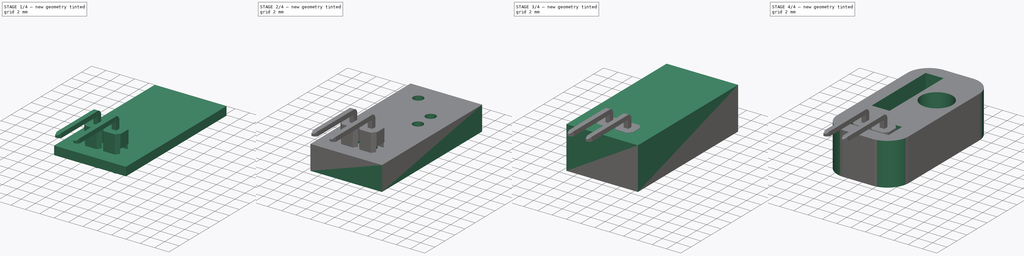
[diagram: build sequence overview — one tinted view per stage of 4, left to right]
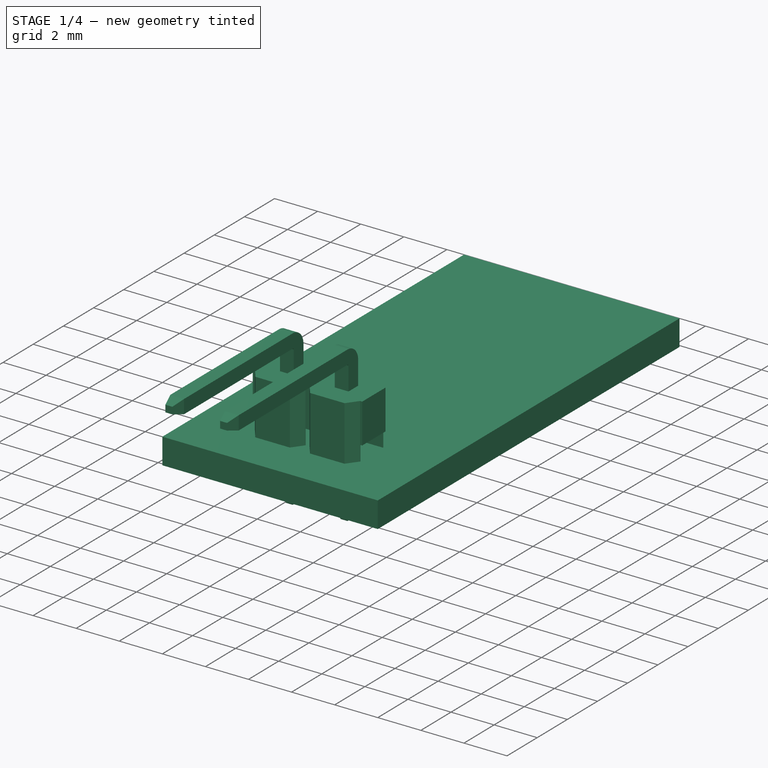
[diagram: stage 1 of 4 — iso view after this stage's code; geometry added in this stage tinted green]
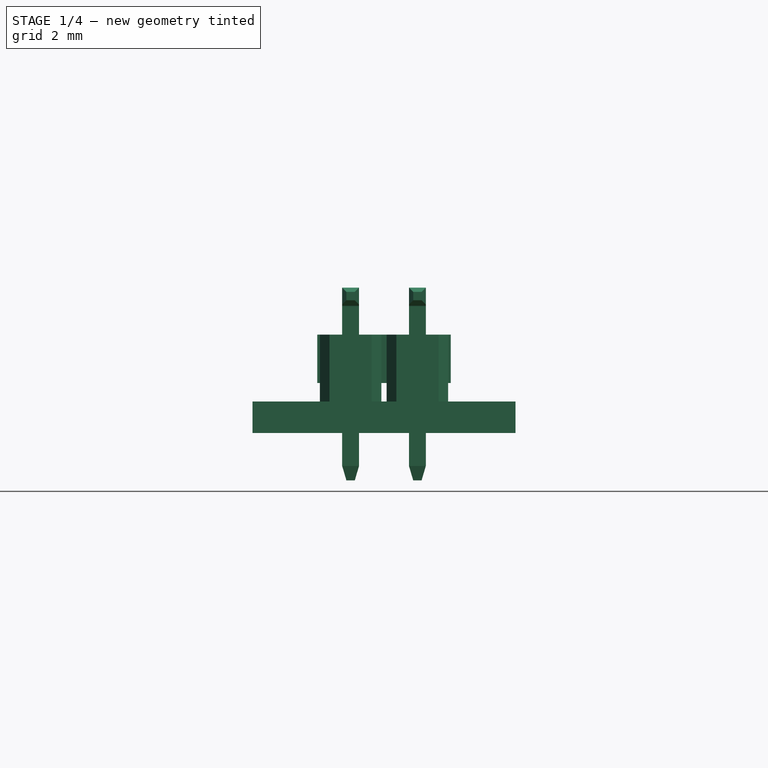
[diagram: stage 1 of 4 — front view after this stage's code; geometry added in this stage tinted green]
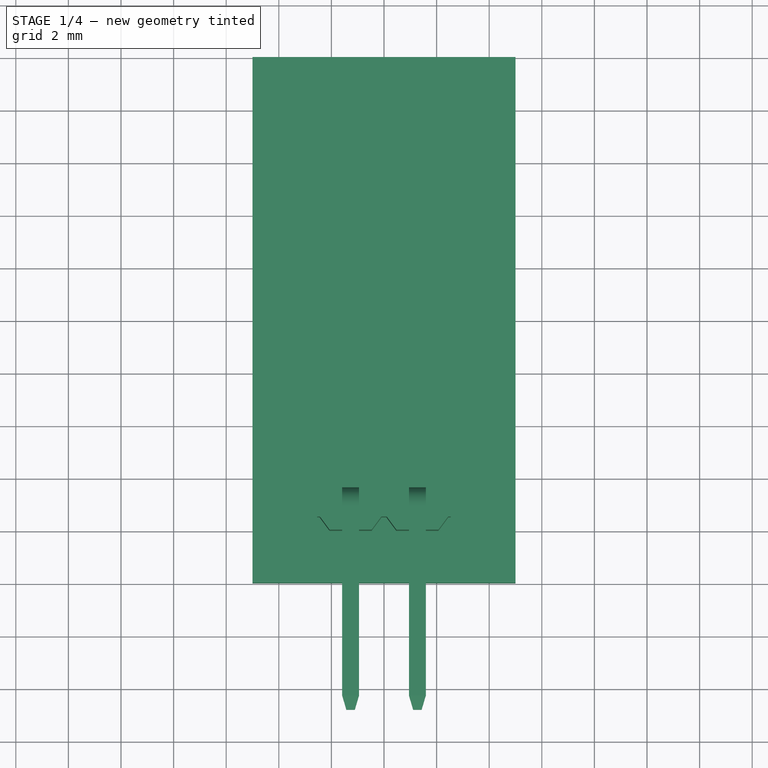
[diagram: stage 1 of 4 — top view after this stage's code; geometry added in this stage tinted green]
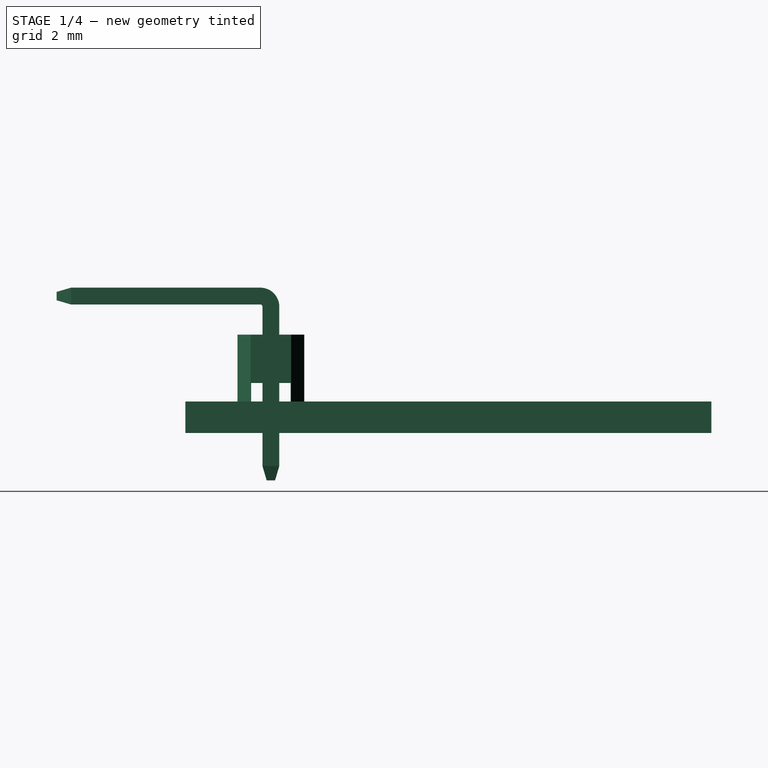
[diagram: stage 1 of 4 — right view after this stage's code; geometry added in this stage tinted green]
FCSTD DOCUMENT  (FreeCAD 0.16R6703 (Git))
Label: pcb-led
License: All rights reserved
LicenseURL: http://en.wikipedia.org/wiki/All_rights_reserved
objects: Part::Feature×9, Sketcher::SketchObject×7, App::DocumentObjectGroup×5, PartDesign::Pad×4, PartDesign::Pocket×3, Part::FeaturePython×3, Spreadsheet::Sheet×1, PartDesign::Fillet×1
note: 34 computed .brp shape members not serialized (recipe doc carries the construction recipe); baked Part::Feature solids carry a one-line shape summary decoded from their .brp

FEATURE [Sketcher::SketchObject] Sketch010  label="pcb-body-sketch"
  sketch-geometry (4):
    g0: LineSegment StartX=-5 StartY=10 StartZ=0 EndX=5 EndY=10 EndZ=0
    g1: LineSegment StartX=5 StartY=10 StartZ=0 EndX=5 EndY=-10 EndZ=0
    g2: LineSegment StartX=5 StartY=-10 StartZ=0 EndX=-5 EndY=-10 EndZ=0
    g3: LineSegment StartX=-5 StartY=-10 StartZ=0 EndX=-5 EndY=10 EndZ=0
  constraints (11):
    c: Coincident(g0,g1)
    c: Coincident(g1,g2)
    c: Coincident(g2,g3)
    c: Coincident(g3,g0)
    c: Horizontal(g0)
    c: Horizontal(g2)
    c: Vertical(g1)
    c: Vertical(g3)
    c: Symmetric(g0,g1,g-1)
    c: DistanceX(g0,g0) = 10
    c: DistanceY(g1,g1) = 20
FEATURE [Spreadsheet::Sheet] Spreadsheet  label="Board_parameters"
  cells = B2=PCB_th; C2(PCB_th)=1.2; D2=Thickness of the PCB layer; B3=Drill1_diam; C3(Drill1_diam)=1.4; D3=Drills type 1 diameter; B4=PCB_sp; C4(PCB_sp)=0.2; D4=Thickness of the PCB spacer layer; B5=PCB_ch_th_; C5(PCB_ch_th)=2; D5=Thickness of the Bottom channels; B6=PCB_top_th_; C6(PCB_top_th)=2.5; D6=Thickness of the TOP pcb
FEATURE [PartDesign::Pad] Pad004  label="PCB-layer-blank"
  Length = 1.2
  Length2 = 100
  Sketch = -> Sketch010
  Type = 0
  expr: Length = Board_parameters.PCB_th
FEATURE [Part::FeaturePython] Clone001  label="support-array"  # WARN: FeaturePython — macro-defined, semantics opaque (R4)
  Placement = pos=(1.27,-6.75,1.2) rot=(0,0,1;3.14159rad)
  Scale = (1,1,1)
FEATURE [Part::FeaturePython] Clone002  label="pin-array"  # WARN: FeaturePython — macro-defined, semantics opaque (R4)
  Placement = pos=(1.27,-4.21,-1.254) rot=(0,0,1;3.14159rad)
  Scale = (1,1,1)
FEATURE [App::DocumentObjectGroup] Group001  label="connector"
  Group = -> [Clone001,Clone002]
FEATURE [Part::Feature] Part__Feature  label="led_head"
  Placement = pos=(2.0249,2.79891,1.2) rot=(0.57735,0.57735,0.57735;2.0944rad)
  shape: bbox 3.686 x 3.686 x 6.1 mm, 5 faces (baked)
FEATURE [Part::Feature] Part__Feature001  label="led-neg-pin"
  Placement = pos=(2.0249,2.79891,1.2) rot=(0.57735,0.57735,0.57735;2.0944rad)
  shape: bbox 0.44 x 1.74 x 5.65 mm, 10 faces (baked)
FEATURE [Part::Feature] Part__Feature002  label="led-pos-pin"
  Placement = pos=(2.0249,2.79891,1.2) rot=(0.57735,0.57735,0.57735;2.0944rad)
  shape: bbox 0.44 x 1.1 x 7.7 mm, 11 faces (baked)
FEATURE [App::DocumentObjectGroup] Group002  label="led-3mm"
  Group = -> [Part__Feature,Part__Feature001,Part__Feature002]
FEATURE [Part::Feature] Part__Feature003  label="Clone_of_res-body"
  Placement = pos=(-1.95934,2.93901,2.22) rot=(0,0,1;1.5708rad)
  shape: bbox 2.3 x 6 x 2.3 mm, 5 faces (baked)
FEATURE [Part::Feature] Part__Feature004  label="Clone_of_ring-1"
  Placement = pos=(-1.95934,2.93901,2.22) rot=(0,0,1;1.5708rad)
  shape: bbox 2.231 x 0.3919 x 2.231 mm, 4 faces (baked)
FEATURE [Part::Feature] Part__Feature005  label="Clone_of_ring-2"
  Placement = pos=(-1.95934,2.93901,2.22) rot=(0,0,1;1.5708rad)
  shape: bbox 1.833 x 0.4 x 1.833 mm, 4 faces (baked)
FEATURE [Part::Feature] Part__Feature006  label="Clone_of_ring-4"
  Placement = pos=(-1.95934,2.93901,2.22) rot=(0,0,1;1.5708rad)
  shape: bbox 2.233 x 0.3939 x 2.233 mm, 4 faces (baked)
FEATURE [Part::Feature] Part__Feature007  label="Clone_of_Sweep"
  Placement = pos=(-1.95934,2.93901,2.22) rot=(0,0,1;1.5708rad)
  shape: bbox 0.5 x 10.64 x 4.404 mm, 7 faces (baked)
FEATURE [Part::Feature] Part__Feature008  label="Clone_of_ring-3"
  Placement = pos=(-1.95934,2.93901,2.22) rot=(0,0,1;1.5708rad)
  shape: bbox 1.833 x 0.4 x 1.833 mm, 4 faces (baked)
FEATURE [App::DocumentObjectGroup] Group003  label="Resistor"
  Group = -> [Part__Feature003,Part__Feature004,Part__Feature005,Part__Feature006,Part__Feature007,Part__Feature008]
FEATURE [App::DocumentObjectGroup] Group004  label="Components"
  Group = -> [Group001,Group002,Group003]
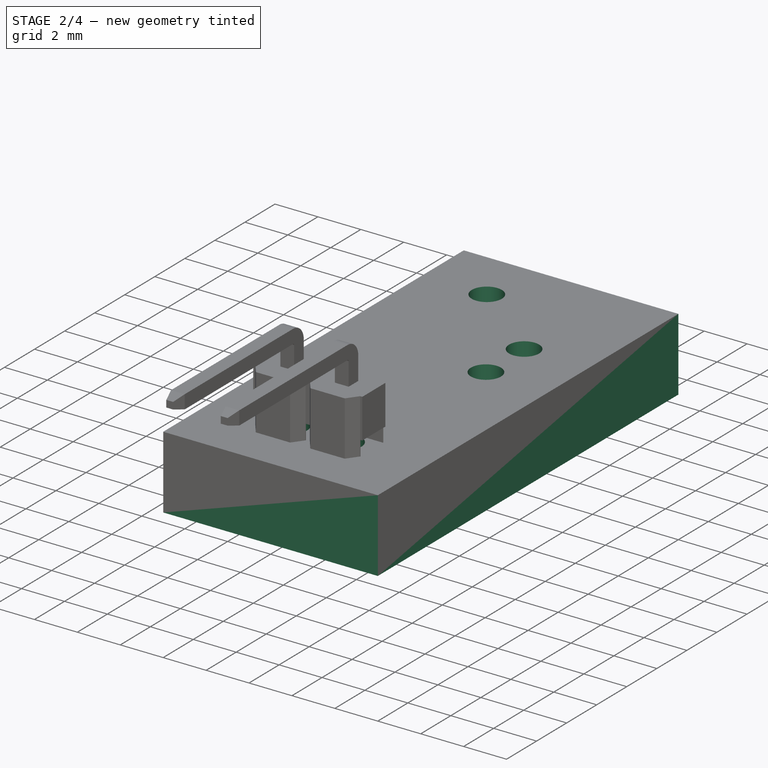
[diagram: stage 2 of 4 — iso view after this stage's code; geometry added in this stage tinted green]
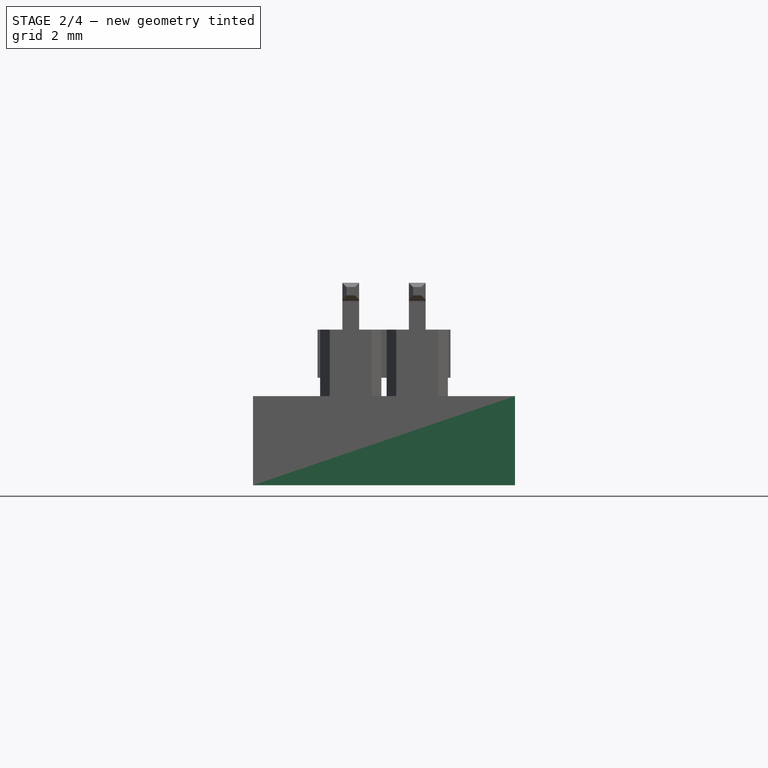
[diagram: stage 2 of 4 — front view after this stage's code; geometry added in this stage tinted green]
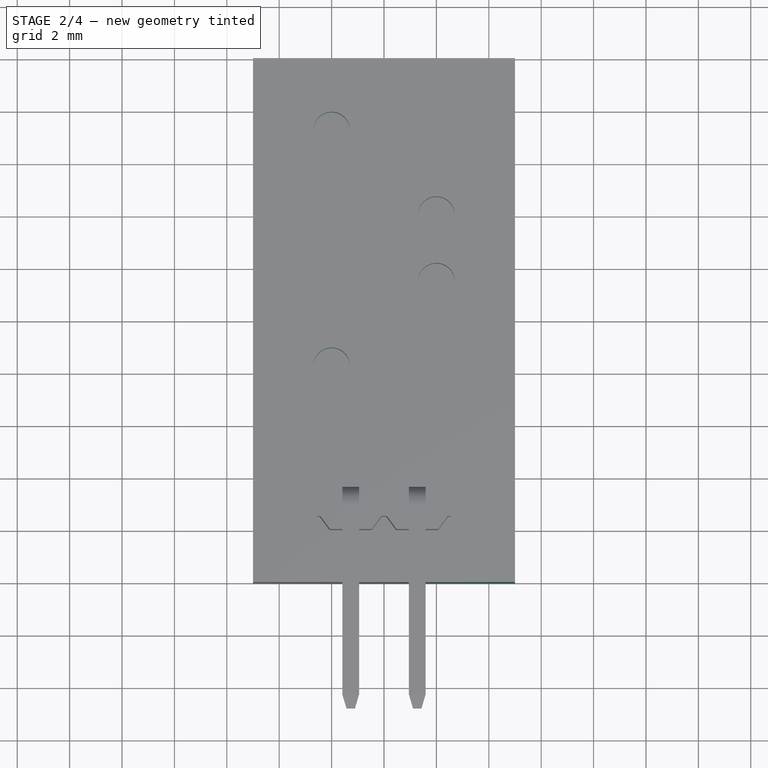
[diagram: stage 2 of 4 — top view after this stage's code; geometry added in this stage tinted green]
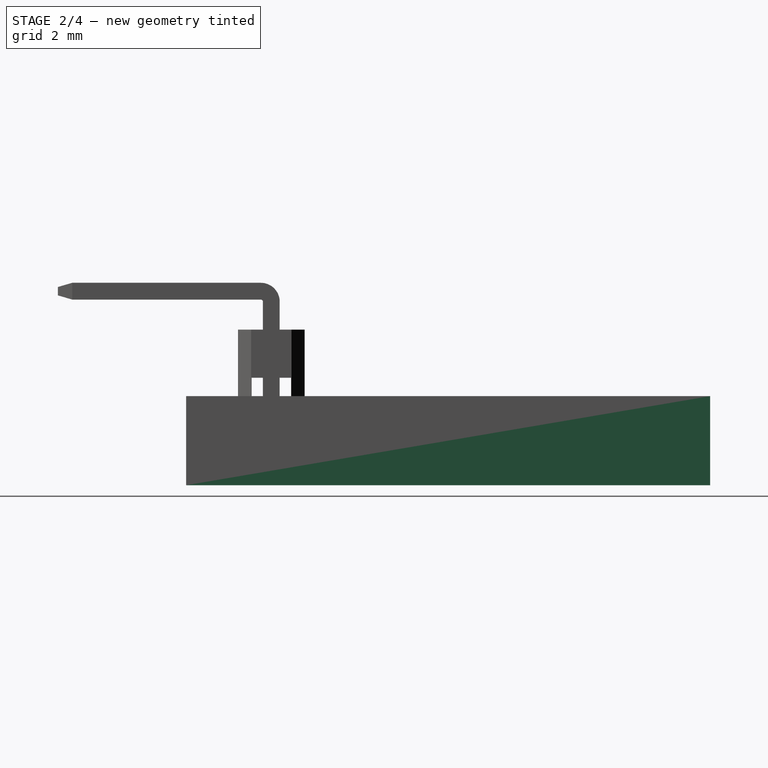
[diagram: stage 2 of 4 — right view after this stage's code; geometry added in this stage tinted green]
FEATURE [Sketcher::SketchObject] Sketch011  label="PCB-drills1-sketch"
  ExternalGeometry = -> [Pad004]
  Placement = pos=(0,0,1.2) rot=(0,0,1;0rad)
  Support = -> Pad004 [Face6]
  expr: Constraints[5] = Board_parameters.Drill1_diam / 2
  sketch-geometry (9):
    g0: Circle CenterX=-1.27 CenterY=-6.75 CenterZ=0 NormalX=0 NormalY=0 NormalZ=1 Radius=0.7
    g1: Circle CenterX=1.27 CenterY=-6.75 CenterZ=0 NormalX=0 NormalY=0 NormalZ=1 Radius=0.7
    g2: Circle CenterX=-2 CenterY=7.25 CenterZ=0 NormalX=0 NormalY=0 NormalZ=1 Radius=0.7
    g3: Circle CenterX=-2 CenterY=-1.75 CenterZ=0 NormalX=0 NormalY=0 NormalZ=1 Radius=0.7
    g4: Circle CenterX=2 CenterY=4.02 CenterZ=0 NormalX=0 NormalY=0 NormalZ=1 Radius=0.7
    g5: Circle CenterX=2 CenterY=1.48 CenterZ=0 NormalX=0 NormalY=0 NormalZ=1 Radius=0.7
    g6: LineSegment [constr] StartX=-2 StartY=7.25 StartZ=0 EndX=-2 EndY=-1.75 EndZ=0
    g7: LineSegment [constr] StartX=2 StartY=4.02 StartZ=0 EndX=2 EndY=1.48 EndZ=0
    g8: LineSegment [constr] StartX=-2 StartY=2.75 StartZ=0 EndX=2 EndY=2.75 EndZ=0
  constraints (25):
    c: Equal(g2,g4)
    c: Equal(g4,g3)
    c: Equal(g3,g5)
    c: Equal(g5,g0)
    c: Equal(g0,g1)
    c: Radius(g0) = 0.7
    c: Symmetric(g0,g1,g-2)
    c: DistanceX(g0,g1) = 2.54
    c: DistanceY(g-3,g0) = 3.25
    c: Coincident(g6,g2)
    c: Coincident(g6,g3)
    c: Vertical(g6)
    c: DistanceY(g6,g6) = 9
    c: Coincident(g7,g4)
    c: Coincident(g7,g5)
    c: Vertical(g7)
    c: DistanceY(g7,g7) = 2.54
    c: PointOnObject(g8,g6)
    c: PointOnObject(g8,g7)
    c: Horizontal(g8)
    c: Symmetric(g4,g5,g8)
    c: Symmetric(g2,g3,g8)
    c: DistanceX(g2,g4) = 4
    c: Symmetric(g8,g8,g-2)
    c: DistanceY(g0,g3) = 5
FEATURE [PartDesign::Pocket] Pocket004  label="PCB-drills1"
  Length = 5
  Sketch = -> Sketch011
  Type = 1
FEATURE [Sketcher::SketchObject] Sketch012  label="Spacer_layer-sketch"
  ExternalGeometry = -> [Pocket004]
  Placement = pos=(0,0,0) rot=(1,0,0;3.14159rad)
  Support = -> Pocket004 [Face4]
  sketch-geometry (4):
    g0: LineSegment StartX=-5 StartY=10 StartZ=0 EndX=5 EndY=10 EndZ=0
    g1: LineSegment StartX=5 StartY=10 StartZ=0 EndX=5 EndY=-10 EndZ=0
    g2: LineSegment StartX=5 StartY=-10 StartZ=0 EndX=-5 EndY=-10 EndZ=0
    g3: LineSegment StartX=-5 StartY=-10 StartZ=0 EndX=-5 EndY=10 EndZ=0
  constraints (10):
    c: Coincident(g0,g1)
    c: Coincident(g1,g2)
    c: Coincident(g2,g3)
    c: Coincident(g3,g0)
    c: Horizontal(g0)
    c: Horizontal(g2)
    c: Vertical(g1)
    c: Vertical(g3)
    c: Coincident(g0,g-3)
    c: Coincident(g1,g-4)
FEATURE [PartDesign::Pad] Pad005  label="spacer-layer"
  Length = 0.2
  Length2 = 100
  Sketch = -> Sketch012
  Type = 0
  expr: Length = Board_parameters.PCB_sp
FEATURE [Sketcher::SketchObject] Sketch014  label="Bottom_base_channel-sketch"
  ExternalGeometry = -> [Pad005]
  Placement = pos=(0,0,-0.2) rot=(1,0,0;3.14159rad)
  Support = -> Pad005 [Face15]
  sketch-geometry (4):
    g0: LineSegment StartX=-5 StartY=10 StartZ=0 EndX=5 EndY=10 EndZ=0
    g1: LineSegment StartX=5 StartY=10 StartZ=0 EndX=5 EndY=-10 EndZ=0
    g2: LineSegment StartX=5 StartY=-10 StartZ=0 EndX=-5 EndY=-10 EndZ=0
    g3: LineSegment StartX=-5 StartY=-10 StartZ=0 EndX=-5 EndY=10 EndZ=0
  constraints (10):
    c: Coincident(g0,g1)
    c: Coincident(g1,g2)
    c: Coincident(g2,g3)
    c: Coincident(g3,g0)
    c: Horizontal(g0)
    c: Horizontal(g2)
    c: Vertical(g1)
    c: Vertical(g3)
    c: Coincident(g0,g-3)
    c: Coincident(g1,g-4)
FEATURE [PartDesign::Pad] Pad006  label="Base_bottom_channel_layer"
  Length = 2
  Length2 = 100
  Sketch = -> Sketch014
  Type = 0
  expr: Length = Board_parameters.PCB_ch_th
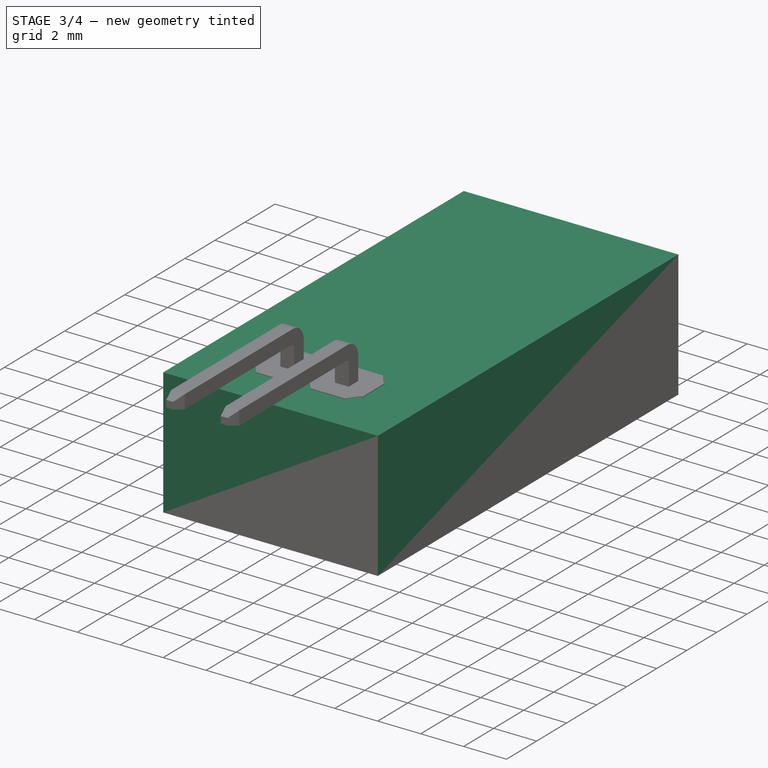
[diagram: stage 3 of 4 — iso view after this stage's code; geometry added in this stage tinted green]
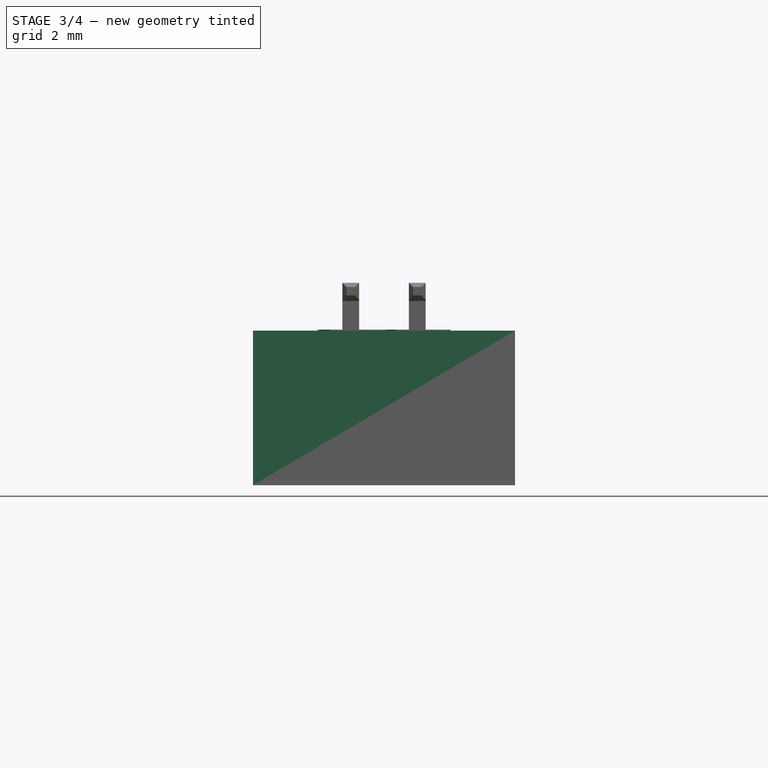
[diagram: stage 3 of 4 — front view after this stage's code; geometry added in this stage tinted green]
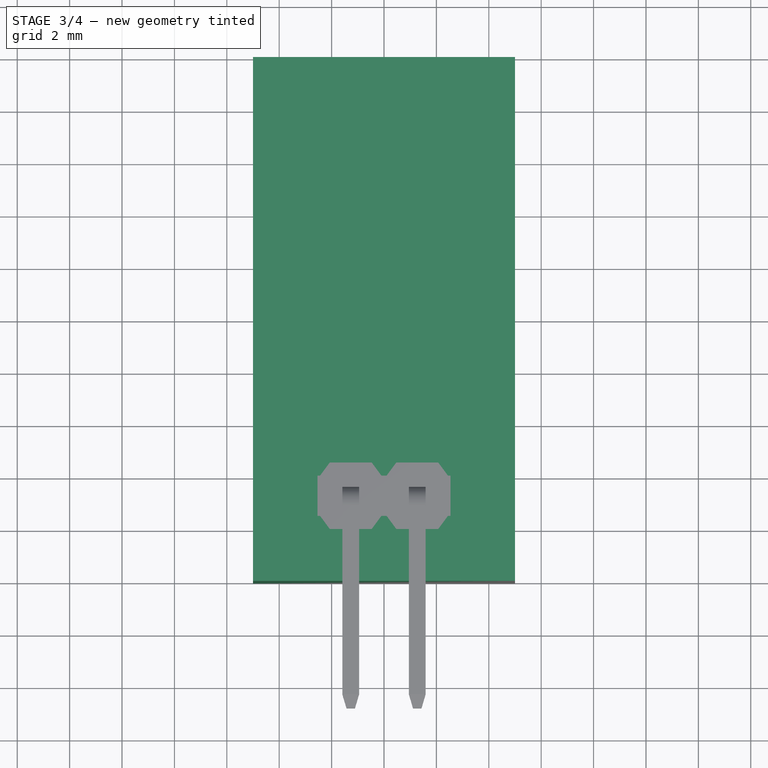
[diagram: stage 3 of 4 — top view after this stage's code; geometry added in this stage tinted green]
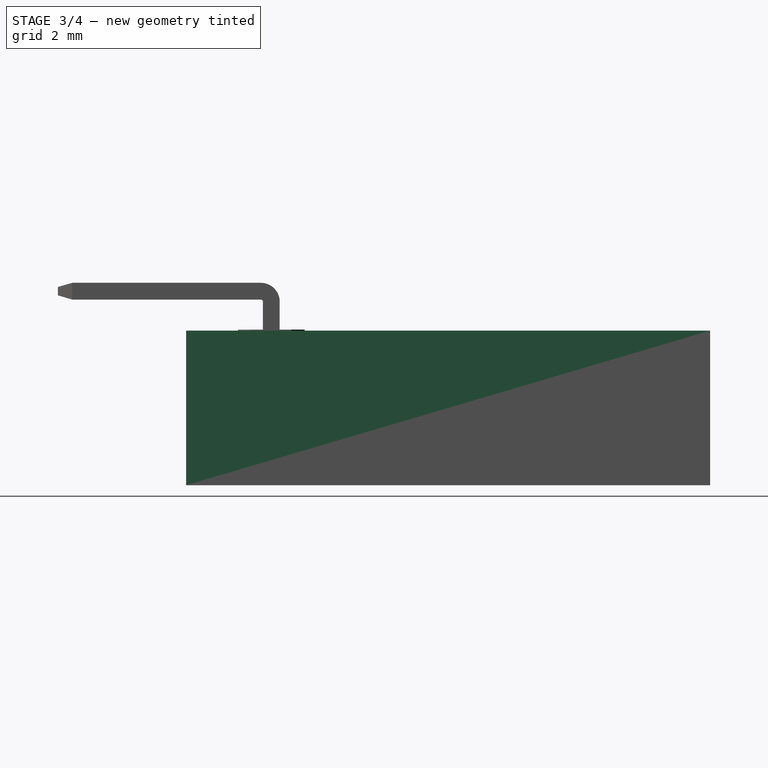
[diagram: stage 3 of 4 — right view after this stage's code; geometry added in this stage tinted green]
FEATURE [Sketcher::SketchObject] Sketch013  label="Channel-sketch"
  Placement = pos=(0,0,-2.2) rot=(1,0,0;3.14159rad)
  Support = -> Pad006 [Face15]
  sketch-geometry (12):
    g0: LineSegment StartX=-3.80896 StartY=8.42017 StartZ=0 EndX=3.62375 EndY=8.42017 EndZ=0
    g1: LineSegment StartX=3.62375 StartY=8.42017 StartZ=0 EndX=3.62375 EndY=-5.1034 EndZ=0
    g2: LineSegment StartX=-3.80896 StartY=0.458633 StartZ=0 EndX=-3.80896 EndY=8.42017 EndZ=0
    g3: LineSegment StartX=3.62375 StartY=-5.1034 StartZ=0 EndX=0 EndY=-7.18122 EndZ=0
    g4: LineSegment StartX=0 StartY=-7.18122 StartZ=0 EndX=0 EndY=-8.736 EndZ=0
    g5: LineSegment StartX=0 StartY=-8.736 StartZ=0 EndX=-3.6961 EndY=-8.736 EndZ=0
    g6: LineSegment StartX=-3.6961 StartY=-8.736 StartZ=0 EndX=-3.6961 EndY=-5.97633 EndZ=0
    g7: LineSegment StartX=-3.6961 StartY=-5.97633 StartZ=0 EndX=0.775065 EndY=-3.41261 EndZ=0
    g8: LineSegment StartX=0.775065 StartY=-3.41261 StartZ=0 EndX=0.775065 EndY=5.28381 EndZ=0
    g9: LineSegment StartX=0.775065 StartY=5.28381 StartZ=0 EndX=-0.618984 EndY=5.28381 EndZ=0
    g10: LineSegment StartX=-0.618984 StartY=5.28381 StartZ=0 EndX=-0.618984 EndY=0.458633 EndZ=0
    g11: LineSegment StartX=-0.618984 StartY=0.458633 StartZ=0 EndX=-3.80896 EndY=0.458633 EndZ=0
  constraints (24):
    c: Coincident(g0,g1)
    c: Coincident(g2,g0)
    c: Horizontal(g0)
    c: Vertical(g1)
    c: Vertical(g2)
    c: PointOnObject(g3,g-2)
    c: Coincident(g3,g4)
    c: PointOnObject(g4,g-2)
    c: Coincident(g4,g5)
    c: Horizontal(g5)
    c: Coincident(g5,g6)
    c: Vertical(g6)
    c: Coincident(g6,g7)
    c: Coincident(g7,g8)
    c: Vertical(g8)
    c: Coincident(g8,g9)
    c: Coincident(g9,g10)
    c: Vertical(g10)
    c: Coincident(g10,g11)
    c: Horizontal(g11)
    c: Coincident(g2,g11)
    c: Horizontal(g9)
    c: Parallel(g3,g7)
    c: Coincident(g3,g1)
FEATURE [PartDesign::Pocket] Pocket005  label="PCB-channels"
  Length = 2
  Sketch = -> Sketch013
  Type = 0
  expr: Length = Board_parameters.PCB_ch_th
FEATURE [Sketcher::SketchObject] Sketch015  label="Top-layer-base-sketch"
  ExternalGeometry = -> [Pocket005]
  Placement = pos=(0,0,1.2) rot=(0,0,1;0rad)
  Support = -> Pocket005 [Face1]
  sketch-geometry (4):
    g0: LineSegment StartX=-5 StartY=10 StartZ=0 EndX=5 EndY=10 EndZ=0
    g1: LineSegment StartX=5 StartY=10 StartZ=0 EndX=5 EndY=-10 EndZ=0
    g2: LineSegment StartX=5 StartY=-10 StartZ=0 EndX=-5 EndY=-10 EndZ=0
    g3: LineSegment StartX=-5 StartY=-10 StartZ=0 EndX=-5 EndY=10 EndZ=0
  constraints (10):
    c: Coincident(g0,g1)
    c: Coincident(g1,g2)
    c: Coincident(g2,g3)
    c: Coincident(g3,g0)
    c: Horizontal(g0)
    c: Horizontal(g2)
    c: Vertical(g1)
    c: Vertical(g3)
    c: Coincident(g0,g-3)
    c: Coincident(g1,g-4)
FEATURE [PartDesign::Pad] Pad007  label="Top-layer-base"
  Length = 2.5
  Length2 = 100
  Sketch = -> Sketch015
  Type = 0
  expr: Length = Board_parameters.PCB_top_th
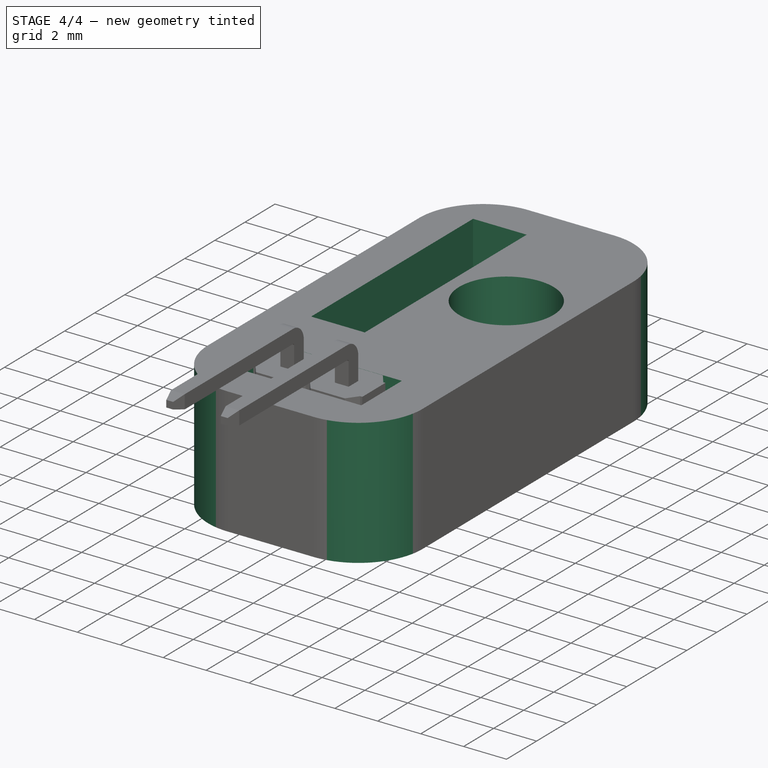
[diagram: stage 4 of 4 — iso view after this stage's code; geometry added in this stage tinted green]
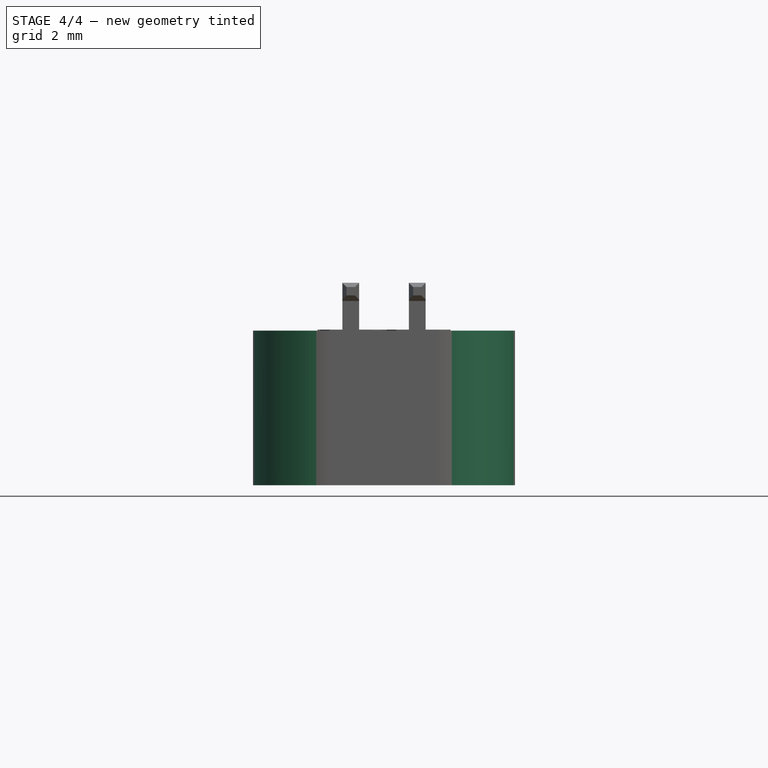
[diagram: stage 4 of 4 — front view after this stage's code; geometry added in this stage tinted green]
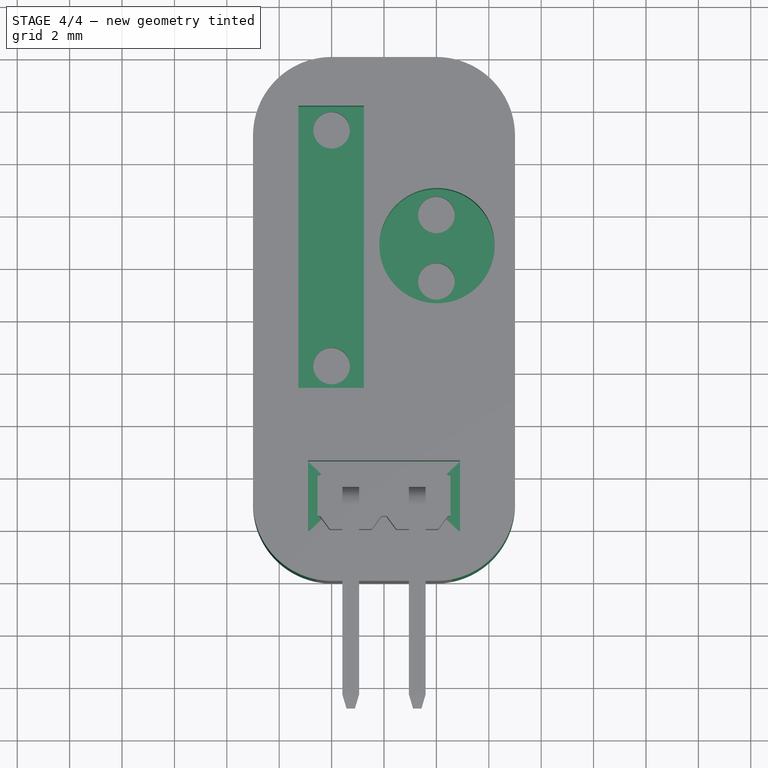
[diagram: stage 4 of 4 — top view after this stage's code; geometry added in this stage tinted green]
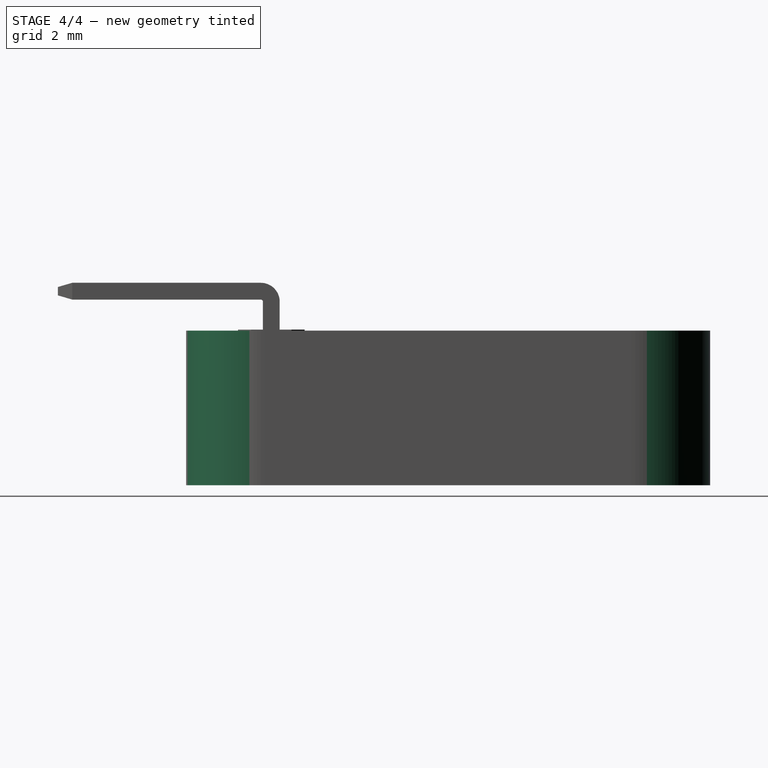
[diagram: stage 4 of 4 — right view after this stage's code; geometry added in this stage tinted green]
FEATURE [Sketcher::SketchObject] Sketch016  label="Top-layer-sketch"
  ExternalGeometry = -> [Pad007]
  Placement = pos=(0,0,3.7) rot=(0,0,1;0rad)
  Support = -> Pad007 [Face1]
  sketch-geometry (10):
    g0: LineSegment StartX=-2.9 StartY=-5.4 StartZ=0 EndX=2.9 EndY=-5.4 EndZ=0
    g1: LineSegment StartX=2.9 StartY=-5.4 StartZ=0 EndX=2.9 EndY=-8.1 EndZ=0
    g2: LineSegment StartX=2.9 StartY=-8.1 StartZ=0 EndX=-2.9 EndY=-8.1 EndZ=0
    g3: LineSegment StartX=-2.9 StartY=-8.1 StartZ=0 EndX=-2.9 EndY=-5.4 EndZ=0
    g4: LineSegment [constr] StartX=1.27 StartY=-6.75 StartZ=0 EndX=2.9 EndY=-6.75 EndZ=0
    g5: LineSegment StartX=-3.26715 StartY=8.14469 StartZ=0 EndX=-0.767145 EndY=8.14469 EndZ=0
    g6: LineSegment StartX=-0.767145 StartY=8.14469 StartZ=0 EndX=-0.767145 EndY=-2.63153 EndZ=0
    g7: LineSegment StartX=-0.767145 StartY=-2.63153 StartZ=0 EndX=-3.26715 EndY=-2.63153 EndZ=0
    g8: LineSegment StartX=-3.26715 StartY=-2.63153 StartZ=0 EndX=-3.26715 EndY=8.14469 EndZ=0
    g9: Circle CenterX=2.0249 CenterY=2.79891 CenterZ=0 NormalX=0 NormalY=0 NormalZ=1 Radius=2.2
  constraints (25):
    c: Coincident(g0,g1)
    c: Coincident(g1,g2)
    c: Coincident(g2,g3)
    c: Coincident(g3,g0)
    c: Horizontal(g0)
    c: Horizontal(g2)
    c: Vertical(g1)
    c: Vertical(g3)
    c: Coincident(g4,g-3)
    c: Horizontal(g4)
    c: Symmetric(g0,g2,g4)
    c: Symmetric(g0,g0,g-2)
    c: PointOnObject(g4,g1)
    c: DistanceX(g0,g0) = 5.8
    c: DistanceY(g1,g1) = 2.7
    c: Coincident(g5,g6)
    c: Coincident(g6,g7)
    c: Coincident(g7,g8)
    c: Coincident(g8,g5)
    c: Horizontal(g5)
    c: Horizontal(g7)
    c: Vertical(g6)
    c: Vertical(g8)
    c: DistanceX(g5,g5) = 2.5
    c: Radius(g9) = 2.2
FEATURE [PartDesign::Pocket] Pocket006  label="Top-layer"
  Length = 2.5
  Sketch = -> Sketch016
  Type = 0
  expr: Length = Board_parameters.PCB_top_th
FEATURE [PartDesign::Fillet] Fillet  label="pcb-led-rounded"
  Base = -> Pocket006 [Edge19,Edge17,Edge15,Edge14]
  Radius = 3
FEATURE [App::DocumentObjectGroup] Group  label="pcb-led-src"
  Group = -> [Pad004,Pocket004,Pad005,Pad006,Pocket005,Pad007,Pocket006,Fillet]
FEATURE [Part::FeaturePython] Clone  label="pcb-led"  # Draft clone (typed FeaturePython)
  Objects = -> [Fillet]
  Scale = (1,1,1)
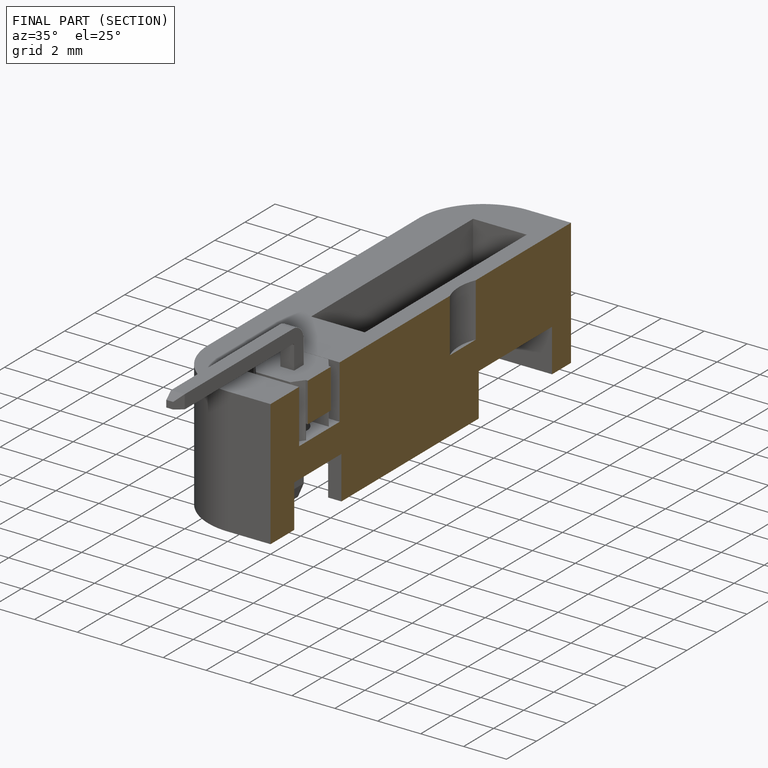
[diagram: finished part — half-section view (interior)]
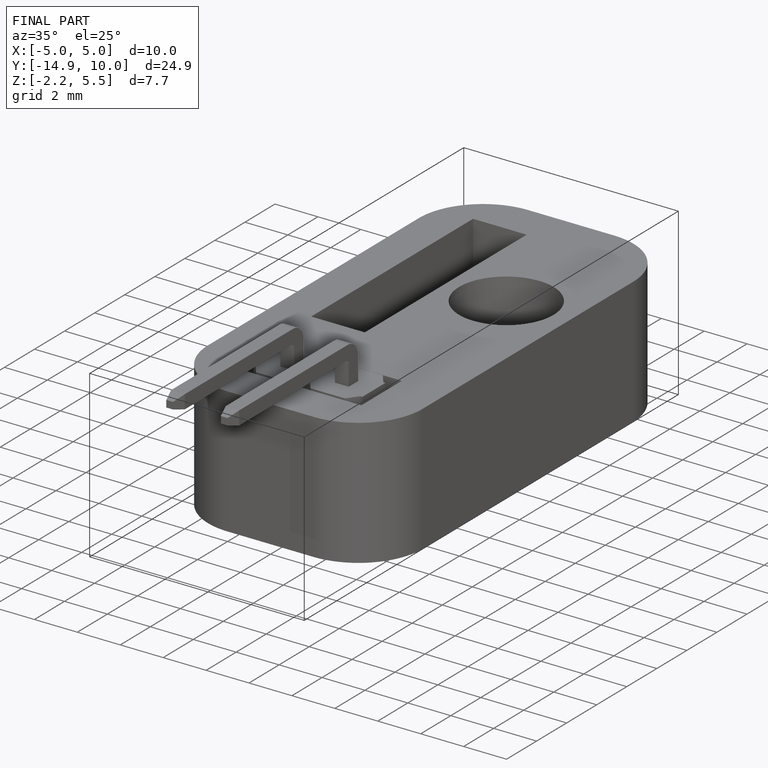
[diagram: finished part — iso view with bounding-box wireframe]
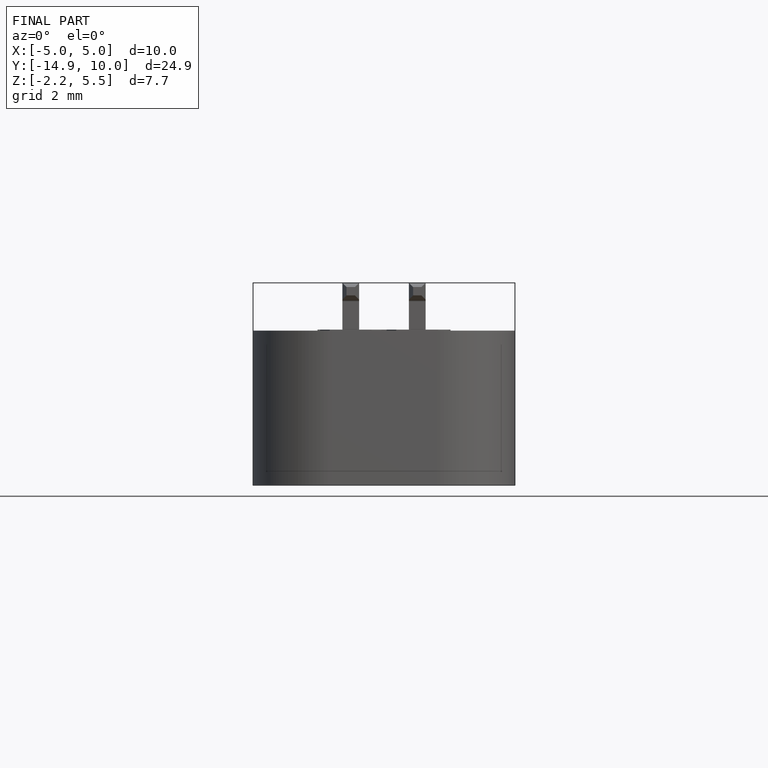
[diagram: finished part — front view with bounding-box wireframe]
